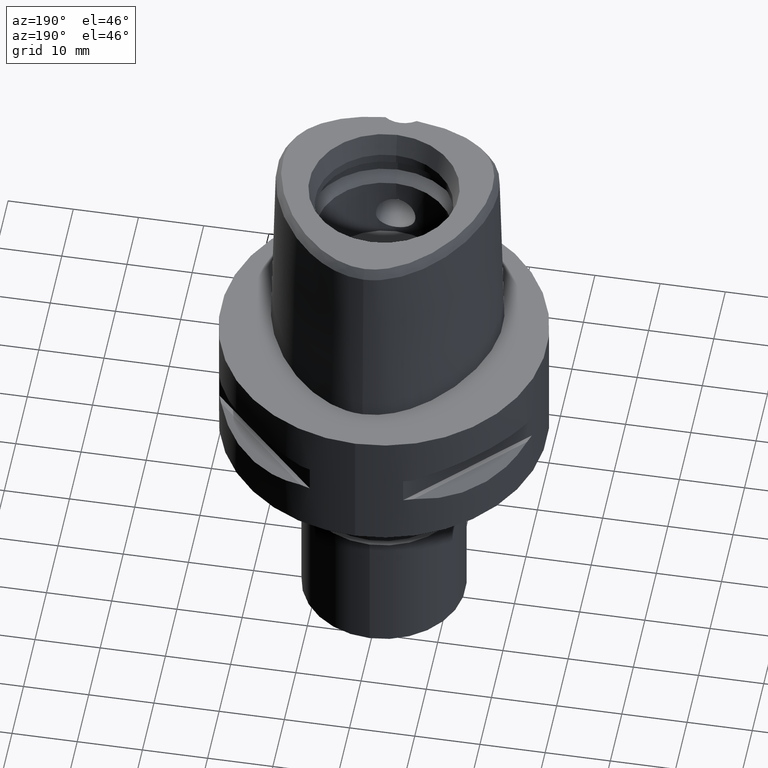
[diagram: clean part render]
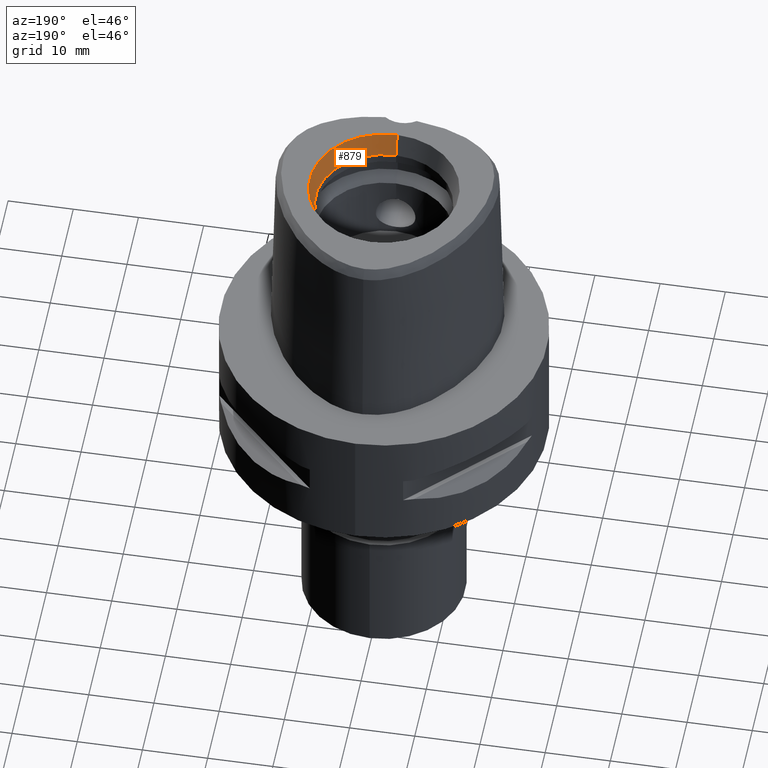
[diagram: same view with one face highlighted and labeled with its STEP entity id]
A machine part, auxiliary view. The second image highlights one B-rep face of the part: STEP entity #879.
In plain terms, the highlighted conical surface has half-angle 15 deg.
Its self-contained STEP definition (entity closure, byte-faithful):
#79 = VERTEX_POINT ( 'NONE', #368 ) ;
#368 = CARTESIAN_POINT ( 'NONE',  ( 0.0000000000000000000, -10.50000000000000000, 26.50000000000000000 ) ) ;
#440 = CARTESIAN_POINT ( 'NONE',  ( 0.0000000000000000000, 10.50000000000000000, 26.50000000000000000 ) ) ;
#626 = DIRECTION ( 'NONE',  ( 0.0000000000000000000, -0.2588190451023999472, 0.9659258262891006197 ) ) ;
#689 = CIRCLE ( 'NONE', #4600, 11.43782217350000074 ) ;
#755 = ORIENTED_EDGE ( 'NONE', *, *, #4607, .T. ) ;
#879 = ADVANCED_FACE ( 'NONE', ( #3143 ), #1479, .F. ) ;
#965 = DIRECTION ( 'NONE',  ( 0.0000000000000000000, 1.000000000000000000, 0.0000000000000000000 ) ) ;
#1479 = CONICAL_SURFACE ( 'NONE', #4331, 10.96891108674999948, 0.2617993877991000029 ) ;
#1496 = EDGE_CURVE ( 'NONE', #79, #4224, #2264, .T. ) ;
#1825 = CARTESIAN_POINT ( 'NONE',  ( 0.0000000000000000000, 1.570609519905999910E-14, 30.00000000000000000 ) ) ;
#1912 = CARTESIAN_POINT ( 'NONE',  ( 0.0000000000000000000, -11.43782217350000074, 30.00000000000000000 ) ) ;
#1987 = DIRECTION ( 'NONE',  ( 0.0000000000000000000, -1.000000000000000000, 0.0000000000000000000 ) ) ;
#1997 = ORIENTED_EDGE ( 'NONE', *, *, #1496, .F. ) ;
#2066 = CARTESIAN_POINT ( 'NONE',  ( 0.0000000000000000000, 1.570609519905999910E-14, 26.50000000000000000 ) ) ;
#2121 = LINE ( 'NONE', #2901, #4002 ) ;
#2173 = AXIS2_PLACEMENT_3D ( 'NONE', #2066, #2439, #1987 ) ;
#2198 = LINE ( 'NONE', #440, #4025 ) ;
#2264 = CIRCLE ( 'NONE', #2173, 10.50000000000000000 ) ;
#2316 = EDGE_CURVE ( 'NONE', #4224, #4388, #2198, .T. ) ;
#2439 = DIRECTION ( 'NONE',  ( 0.0000000000000000000, 0.0000000000000000000, 1.000000000000000000 ) ) ;
#2634 = EDGE_LOOP ( 'NONE', ( #4718, #1997, #755, #2746 ) ) ;
#2746 = ORIENTED_EDGE ( 'NONE', *, *, #3974, .T. ) ;
#2901 = CARTESIAN_POINT ( 'NONE',  ( 0.0000000000000000000, -10.50000000000000000, 26.50000000000000000 ) ) ;
#3143 = FACE_OUTER_BOUND ( 'NONE', #2634, .T. ) ;
#3151 = DIRECTION ( 'NONE',  ( 0.0000000000000000000, 0.0000000000000000000, 1.000000000000000000 ) ) ;
#3586 = CARTESIAN_POINT ( 'NONE',  ( 0.0000000000000000000, 11.43782217350000074, 30.00000000000000000 ) ) ;
#3974 = EDGE_CURVE ( 'NONE', #3978, #4388, #689, .T. ) ;
#3978 = VERTEX_POINT ( 'NONE', #1912 ) ;
#4002 = VECTOR ( 'NONE', #626, 1000.000000000000114 ) ;
#4025 = VECTOR ( 'NONE', #4035, 1000.000000000000114 ) ;
#4035 = DIRECTION ( 'NONE',  ( 0.0000000000000000000, 0.2588190451023999472, 0.9659258262891006197 ) ) ;
#4203 = CARTESIAN_POINT ( 'NONE',  ( 0.0000000000000000000, 10.50000000000000000, 26.50000000000000000 ) ) ;
#4224 = VERTEX_POINT ( 'NONE', #4203 ) ;
#4331 = AXIS2_PLACEMENT_3D ( 'NONE', #4673, #3151, #965 ) ;
#4388 = VERTEX_POINT ( 'NONE', #3586 ) ;
#4394 = DIRECTION ( 'NONE',  ( 0.0000000000000000000, -1.000000000000000000, 0.0000000000000000000 ) ) ;
#4600 = AXIS2_PLACEMENT_3D ( 'NONE', #1825, #4756, #4394 ) ;
#4607 = EDGE_CURVE ( 'NONE', #79, #3978, #2121, .T. ) ;
#4673 = CARTESIAN_POINT ( 'NONE',  ( 0.0000000000000000000, 1.570609519905999910E-14, 28.25000000000000000 ) ) ;
#4718 = ORIENTED_EDGE ( 'NONE', *, *, #2316, .F. ) ;
#4756 = DIRECTION ( 'NONE',  ( 0.0000000000000000000, 0.0000000000000000000, 1.000000000000000000 ) ) ;